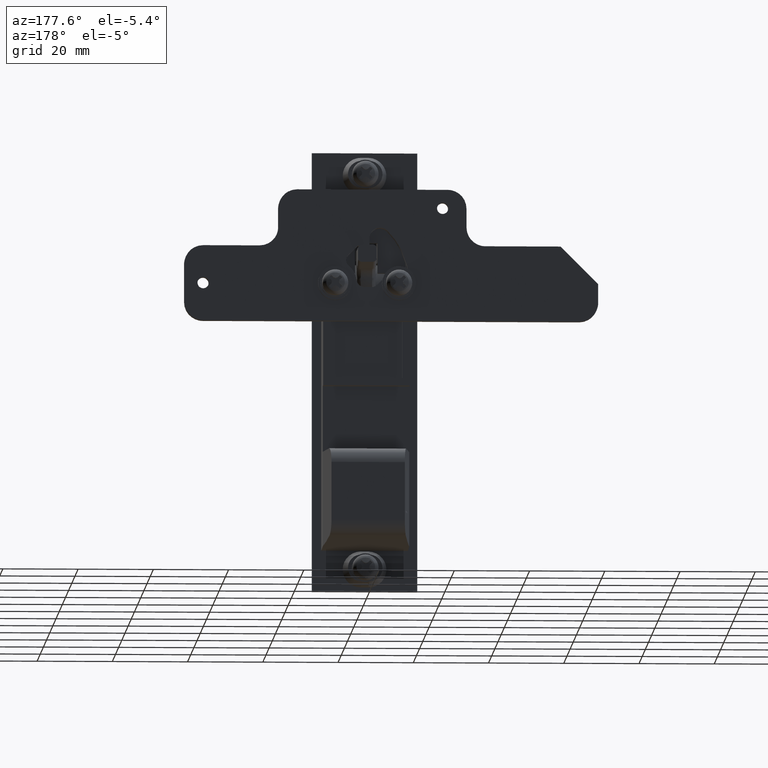
[diagram: clean part render]
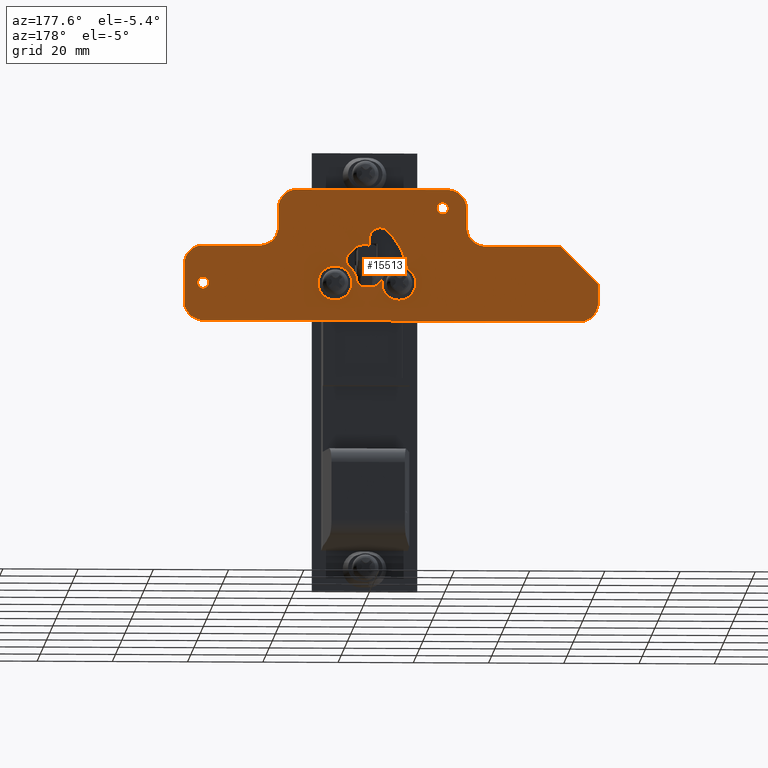
[diagram: same view with one face highlighted and labeled with its STEP entity id]
A machine part, auxiliary view. The second image highlights one B-rep face of the part: STEP entity #15513.
In plain terms, the highlighted face is a freeform B-spline surface patch.
Its self-contained STEP definition (entity closure, byte-faithful):
#13632=CARTESIAN_POINT('',(2.300000000000080,21.665376000523050,19.957311355434431));
#13633=VERTEX_POINT('',#13632);
#13639=CARTESIAN_POINT('',(2.300000000000080,20.170000000000002,21.574999999999999));
#13640=VERTEX_POINT('',#13639);
#13641=CARTESIAN_POINT('',(2.300000000000081,21.665376000523057,19.957311355434424));
#13642=CARTESIAN_POINT('',(2.300000000000080,21.669999999999998,20.016064838510172));
#13643=CARTESIAN_POINT('',(2.300000000000080,21.670000000000002,20.074999999999999));
#13644=CARTESIAN_POINT('',(2.300000000000080,21.670000000000005,21.574999999999996));
#13645=CARTESIAN_POINT('',(2.300000000000080,20.170000000000002,21.574999999999999));
#13653=(BOUNDED_CURVE()B_SPLINE_CURVE(2,(#13641,#13642,#13643,#13644,#13645),.UNSPECIFIED.,.F.,.U.)B_SPLINE_CURVE_WITH_KNOTS((3,2,3),(0.736331300409499,0.750000000000000,1.0),.UNSPECIFIED.)CURVE()GEOMETRIC_REPRESENTATION_ITEM()RATIONAL_B_SPLINE_CURVE((0.969723355705873,0.983986122319777,1.0,0.707106781186548,1.0))REPRESENTATION_ITEM(''));
#13654=EDGE_CURVE('',#13633,#13640,#13653,.T.);
#13656=CARTESIAN_POINT('',(2.300000000000080,18.674623999476950,20.192688644565582));
#13657=VERTEX_POINT('',#13656);
#13658=CARTESIAN_POINT('',(2.300000000000080,20.170000000000002,21.574999999999999));
#13659=CARTESIAN_POINT('',(2.300000000000079,18.783414264324193,21.575000000000003));
#13660=CARTESIAN_POINT('',(2.300000000000080,18.674623999476960,20.192688644565575));
#13668=(BOUNDED_CURVE()B_SPLINE_CURVE(2,(#13658,#13659,#13660),.UNSPECIFIED.,.F.,.U.)B_SPLINE_CURVE_WITH_KNOTS((3,3),(0.0,0.236331300409500),.UNSPECIFIED.)CURVE()GEOMETRIC_REPRESENTATION_ITEM()RATIONAL_B_SPLINE_CURVE((1.0,0.723120658866771,0.969723355705874))REPRESENTATION_ITEM(''));
#13669=EDGE_CURVE('',#13640,#13657,#13668,.T.);
#13715=CARTESIAN_POINT('',(2.300000000000080,20.170000000000002,18.574999999999999));
#13716=VERTEX_POINT('',#13715);
#13717=CARTESIAN_POINT('',(2.300000000000080,18.674623999476960,20.192688644565575));
#13718=CARTESIAN_POINT('',(2.300000000000079,18.670000000000005,20.133935161489831));
#13719=CARTESIAN_POINT('',(2.300000000000080,18.670000000000002,20.074999999999999));
#13720=CARTESIAN_POINT('',(2.300000000000080,18.669999999999998,18.574999999999999));
#13721=CARTESIAN_POINT('',(2.300000000000080,20.170000000000002,18.574999999999999));
#13729=(BOUNDED_CURVE()B_SPLINE_CURVE(2,(#13717,#13718,#13719,#13720,#13721),.UNSPECIFIED.,.F.,.U.)B_SPLINE_CURVE_WITH_KNOTS((3,2,3),(0.236331300409500,0.250000000000000,0.500000000000000),.UNSPECIFIED.)CURVE()GEOMETRIC_REPRESENTATION_ITEM()RATIONAL_B_SPLINE_CURVE((0.969723355705874,0.983986122319777,1.0,0.707106781186548,1.0))REPRESENTATION_ITEM(''));
#13730=EDGE_CURVE('',#13657,#13716,#13729,.T.);
#13732=CARTESIAN_POINT('',(2.300000000000080,20.170000000000002,18.574999999999999));
#13733=CARTESIAN_POINT('',(2.300000000000081,21.556585735675814,18.574999999999999));
#13734=CARTESIAN_POINT('',(2.300000000000081,21.665376000523057,19.957311355434427));
#13742=(BOUNDED_CURVE()B_SPLINE_CURVE(2,(#13732,#13733,#13734),.UNSPECIFIED.,.F.,.U.)B_SPLINE_CURVE_WITH_KNOTS((3,3),(0.500000000000000,0.736331300409500),.UNSPECIFIED.)CURVE()GEOMETRIC_REPRESENTATION_ITEM()RATIONAL_B_SPLINE_CURVE((1.0,0.723120658866770,0.969723355705875))REPRESENTATION_ITEM(''));
#13743=EDGE_CURVE('',#13716,#13633,#13742,.T.);
#13814=CARTESIAN_POINT('',(2.300000000000080,-42.004623999476948,-0.117688644565577));
#13815=VERTEX_POINT('',#13814);
#13821=CARTESIAN_POINT('',(2.300000000000080,-43.500000000000000,1.499999999999997));
#13822=VERTEX_POINT('',#13821);
#13823=CARTESIAN_POINT('',(2.300000000000079,-42.004623999476948,-0.117688644565577));
#13824=CARTESIAN_POINT('',(2.300000000000079,-41.999999999999986,-0.058935161489832));
#13825=CARTESIAN_POINT('',(2.300000000000080,-41.999999999999993,-2.663519E-015));
#13826=CARTESIAN_POINT('',(2.300000000000080,-41.999999999999993,1.499999999999997));
#13827=CARTESIAN_POINT('',(2.300000000000080,-43.500000000000000,1.499999999999997));
#13835=(BOUNDED_CURVE()B_SPLINE_CURVE(2,(#13823,#13824,#13825,#13826,#13827),.UNSPECIFIED.,.F.,.U.)B_SPLINE_CURVE_WITH_KNOTS((3,2,3),(0.736331300409500,0.750000000000000,1.0),.UNSPECIFIED.)CURVE()GEOMETRIC_REPRESENTATION_ITEM()RATIONAL_B_SPLINE_CURVE((0.969723355705874,0.983986122319777,1.0,0.707106781186548,1.0))REPRESENTATION_ITEM(''));
#13836=EDGE_CURVE('',#13815,#13822,#13835,.T.);
#13838=CARTESIAN_POINT('',(2.300000000000080,-44.995376000523052,0.117688644565571));
#13839=VERTEX_POINT('',#13838);
#13840=CARTESIAN_POINT('',(2.300000000000080,-43.500000000000000,1.499999999999997));
#13841=CARTESIAN_POINT('',(2.300000000000080,-44.886585735675801,1.499999999999998));
#13842=CARTESIAN_POINT('',(2.300000000000079,-44.995376000523052,0.117688644565571));
#13850=(BOUNDED_CURVE()B_SPLINE_CURVE(2,(#13840,#13841,#13842),.UNSPECIFIED.,.F.,.U.)B_SPLINE_CURVE_WITH_KNOTS((3,3),(0.0,0.236331300409500),.UNSPECIFIED.)CURVE()GEOMETRIC_REPRESENTATION_ITEM()RATIONAL_B_SPLINE_CURVE((1.0,0.723120658866771,0.969723355705874))REPRESENTATION_ITEM(''));
#13851=EDGE_CURVE('',#13822,#13839,#13850,.T.);
#13897=CARTESIAN_POINT('',(2.300000000000080,-43.500000000000000,-1.500000000000003));
#13898=VERTEX_POINT('',#13897);
#13899=CARTESIAN_POINT('',(2.300000000000080,-44.995376000523052,0.117688644565571));
#13900=CARTESIAN_POINT('',(2.300000000000080,-45.0,0.058935161489827));
#13901=CARTESIAN_POINT('',(2.300000000000080,-45.0,-2.663519E-015));
#13902=CARTESIAN_POINT('',(2.300000000000080,-45.0,-1.500000000000002));
#13903=CARTESIAN_POINT('',(2.300000000000080,-43.500000000000000,-1.500000000000003));
#13911=(BOUNDED_CURVE()B_SPLINE_CURVE(2,(#13899,#13900,#13901,#13902,#13903),.UNSPECIFIED.,.F.,.U.)B_SPLINE_CURVE_WITH_KNOTS((3,2,3),(0.236331300409500,0.250000000000000,0.500000000000000),.UNSPECIFIED.)CURVE()GEOMETRIC_REPRESENTATION_ITEM()RATIONAL_B_SPLINE_CURVE((0.969723355705874,0.983986122319777,1.0,0.707106781186548,1.0))REPRESENTATION_ITEM(''));
#13912=EDGE_CURVE('',#13839,#13898,#13911,.T.);
#13914=CARTESIAN_POINT('',(2.300000000000080,-43.500000000000000,-1.500000000000003));
#13915=CARTESIAN_POINT('',(2.300000000000081,-42.113414264324184,-1.500000000000003));
#13916=CARTESIAN_POINT('',(2.300000000000080,-42.004623999476948,-0.117688644565577));
#13924=(BOUNDED_CURVE()B_SPLINE_CURVE(2,(#13914,#13915,#13916),.UNSPECIFIED.,.F.,.U.)B_SPLINE_CURVE_WITH_KNOTS((3,3),(0.500000000000000,0.736331300409500),.UNSPECIFIED.)CURVE()GEOMETRIC_REPRESENTATION_ITEM()RATIONAL_B_SPLINE_CURVE((1.0,0.723120658866770,0.969723355705875))REPRESENTATION_ITEM(''));
#13925=EDGE_CURVE('',#13898,#13815,#13924,.T.);
#13996=CARTESIAN_POINT('',(2.300000000000080,-5.708631465567574,-0.219685468296305));
#13997=VERTEX_POINT('',#13996);
#14003=CARTESIAN_POINT('',(2.300000000000080,-8.500000000000000,2.799999999999999));
#14004=VERTEX_POINT('',#14003);
#14005=CARTESIAN_POINT('',(2.300000000000080,-5.708631465567574,-0.219685468296305));
#14006=CARTESIAN_POINT('',(2.300000000000079,-5.700000000000000,-0.110012299881012));
#14007=CARTESIAN_POINT('',(2.300000000000080,-5.700000000000000,-8.881784E-016));
#14008=CARTESIAN_POINT('',(2.300000000000081,-5.699999999999999,2.799999999999999));
#14009=CARTESIAN_POINT('',(2.300000000000080,-8.500000000000000,2.799999999999999));
#14017=(BOUNDED_CURVE()B_SPLINE_CURVE(2,(#14005,#14006,#14007,#14008,#14009),.UNSPECIFIED.,.F.,.U.)B_SPLINE_CURVE_WITH_KNOTS((3,2,3),(0.736331300601037,0.750000000000000,1.0),.UNSPECIFIED.)CURVE()GEOMETRIC_REPRESENTATION_ITEM()RATIONAL_B_SPLINE_CURVE((0.969723356105597,0.983986122544177,1.0,0.707106781186547,1.0))REPRESENTATION_ITEM(''));
#14018=EDGE_CURVE('',#13997,#14004,#14017,.T.);
#14020=CARTESIAN_POINT('',(2.300000000000080,-11.291368534432429,0.219685468296303));
#14021=VERTEX_POINT('',#14020);
#14022=CARTESIAN_POINT('',(2.300000000000080,-8.500000000000000,2.799999999999999));
#14023=CARTESIAN_POINT('',(2.300000000000079,-11.088293376162412,2.799999999999999));
#14024=CARTESIAN_POINT('',(2.300000000000080,-11.291368534432431,0.219685468296303));
#14032=(BOUNDED_CURVE()B_SPLINE_CURVE(2,(#14022,#14023,#14024),.UNSPECIFIED.,.F.,.U.)B_SPLINE_CURVE_WITH_KNOTS((3,3),(0.0,0.236331300601037),.UNSPECIFIED.)CURVE()GEOMETRIC_REPRESENTATION_ITEM()RATIONAL_B_SPLINE_CURVE((1.0,0.723120658642371,0.969723356105597))REPRESENTATION_ITEM(''));
#14033=EDGE_CURVE('',#14004,#14021,#14032,.T.);
#14079=CARTESIAN_POINT('',(2.300000000000080,-8.500000000000000,-2.800000000000001));
#14080=VERTEX_POINT('',#14079);
#14081=CARTESIAN_POINT('',(2.300000000000080,-11.291368534432427,0.219685468296303));
#14082=CARTESIAN_POINT('',(2.300000000000079,-11.300000000000006,0.110012299881010));
#14083=CARTESIAN_POINT('',(2.300000000000080,-11.300000000000001,-8.881784E-016));
#14084=CARTESIAN_POINT('',(2.300000000000081,-11.300000000000001,-2.800000000000000));
#14085=CARTESIAN_POINT('',(2.300000000000080,-8.500000000000000,-2.800000000000001));
#14093=(BOUNDED_CURVE()B_SPLINE_CURVE(2,(#14081,#14082,#14083,#14084,#14085),.UNSPECIFIED.,.F.,.U.)B_SPLINE_CURVE_WITH_KNOTS((3,2,3),(0.236331300601037,0.250000000000000,0.500000000000000),.UNSPECIFIED.)CURVE()GEOMETRIC_REPRESENTATION_ITEM()RATIONAL_B_SPLINE_CURVE((0.969723356105597,0.983986122544177,1.0,0.707106781186547,1.0))REPRESENTATION_ITEM(''));
#14094=EDGE_CURVE('',#14021,#14080,#14093,.T.);
#14096=CARTESIAN_POINT('',(2.300000000000080,-8.500000000000000,-2.800000000000001));
#14097=CARTESIAN_POINT('',(2.300000000000080,-5.911706623837599,-2.800000000000001));
#14098=CARTESIAN_POINT('',(2.300000000000080,-5.708631465567574,-0.219685468296305));
#14106=(BOUNDED_CURVE()B_SPLINE_CURVE(2,(#14096,#14097,#14098),.UNSPECIFIED.,.F.,.U.)B_SPLINE_CURVE_WITH_KNOTS((3,3),(0.500000000000000,0.736331300601036),.UNSPECIFIED.)CURVE()GEOMETRIC_REPRESENTATION_ITEM()RATIONAL_B_SPLINE_CURVE((1.0,0.723120658642372,0.969723356105595))REPRESENTATION_ITEM(''));
#14107=EDGE_CURVE('',#14080,#13997,#14106,.T.);
#14157=CARTESIAN_POINT('',(2.300000000000080,-2.647685432154780,0.746834261424279));
#14158=VERTEX_POINT('',#14157);
#14164=CARTESIAN_POINT('',(2.300000000000080,-0.664000000000101,-1.0));
#14165=VERTEX_POINT('',#14164);
#14166=CARTESIAN_POINT('',(2.300000000000080,-2.647685432154777,0.746834261424279));
#14167=CARTESIAN_POINT('',(2.300000000000080,-2.424800374256769,-0.999802577739425));
#14168=CARTESIAN_POINT('',(2.300000000000080,-0.664000000000101,-0.999999999999998));
#14176=(BOUNDED_CURVE()B_SPLINE_CURVE(2,(#14166,#14167,#14168),.UNSPECIFIED.,.F.,.U.)CURVE()GEOMETRIC_REPRESENTATION_ITEM()QUASI_UNIFORM_CURVE()RATIONAL_B_SPLINE_CURVE((1.0,0.750564084766156,1.0))REPRESENTATION_ITEM(''));
#14177=EDGE_CURVE('',#14158,#14165,#14176,.T.);
#14200=CARTESIAN_POINT('',(2.300000000000080,1.268000000000086,-1.0));
#14201=VERTEX_POINT('',#14200);
#14202=CARTESIAN_POINT('',(2.300000000000080,1.268000000000086,-1.0));
#14203=CARTESIAN_POINT('',(2.300000000000080,-0.664000000000101,-1.0));
#14204=QUASI_UNIFORM_CURVE('',1,(#14202,#14203),.UNSPECIFIED.,.F.,.U.);
#14205=EDGE_CURVE('',#14201,#14165,#14204,.T.);
#14245=CARTESIAN_POINT('',(2.300000000000080,2.706053986238550,-0.389964291866400));
#14246=VERTEX_POINT('',#14245);
#14247=CARTESIAN_POINT('',(2.300000000000080,1.268000000000086,-1.0));
#14248=CARTESIAN_POINT('',(2.300000000000080,2.116418368116123,-1.0));
#14249=CARTESIAN_POINT('',(2.300000000000080,2.706053986238550,-0.389964291866401));
#14257=(BOUNDED_CURVE()B_SPLINE_CURVE(2,(#14247,#14248,#14249),.UNSPECIFIED.,.F.,.U.)CURVE()GEOMETRIC_REPRESENTATION_ITEM()QUASI_UNIFORM_CURVE()RATIONAL_B_SPLINE_CURVE((1.0,0.920592783464329,1.0))REPRESENTATION_ITEM(''));
#14258=EDGE_CURVE('',#14201,#14246,#14257,.T.);
#14281=CARTESIAN_POINT('',(2.300000000000080,3.985973006883475,0.888982145936004));
#14282=VERTEX_POINT('',#14281);
#14283=CARTESIAN_POINT('',(2.300000000000080,3.985973006883475,0.888982145936004));
#14284=CARTESIAN_POINT('',(2.300000000000080,2.706053986238550,-0.389964291866400));
#14285=QUASI_UNIFORM_CURVE('',1,(#14283,#14284),.UNSPECIFIED.,.F.,.U.);
#14286=EDGE_CURVE('',#14282,#14246,#14285,.T.);
#14332=CARTESIAN_POINT('',(2.300000000000080,5.704077029608049,0.151045501868276));
#14333=VERTEX_POINT('',#14332);
#14334=CARTESIAN_POINT('',(2.300000000000080,5.704077029608049,0.151045501868275));
#14335=CARTESIAN_POINT('',(2.300000000000079,5.733719332986361,0.840494702719235));
#14336=CARTESIAN_POINT('',(2.300000000000080,5.099644939660021,1.112833701820414));
#14337=CARTESIAN_POINT('',(2.300000000000079,4.465570546333680,1.385172700921593));
#14338=CARTESIAN_POINT('',(2.300000000000080,3.985973006883477,0.888982145936002));
#14346=(BOUNDED_CURVE()B_SPLINE_CURVE(2,(#14334,#14335,#14336,#14337,#14338),.UNSPECIFIED.,.F.,.U.)B_SPLINE_CURVE_WITH_KNOTS((3,2,3),(0.0,0.500000000000000,1.0),.UNSPECIFIED.)CURVE()GEOMETRIC_REPRESENTATION_ITEM()RATIONAL_B_SPLINE_CURVE((1.0,0.823046977254926,1.0,0.823046977254926,1.0))REPRESENTATION_ITEM(''));
#14347=EDGE_CURVE('',#14333,#14282,#14346,.T.);
#14395=CARTESIAN_POINT('',(2.300000000000080,11.300000000000001,2.955535E-016));
#14396=VERTEX_POINT('',#14395);
#14397=CARTESIAN_POINT('',(2.300000000000080,5.704077029608048,0.151045501868276));
#14398=CARTESIAN_POINT('',(2.300000000000080,5.615049788506117,-1.496890420146690));
#14399=CARTESIAN_POINT('',(2.300000000000080,7.013676440737773,-2.372939585657853));
#14400=CARTESIAN_POINT('',(2.300000000000080,8.412303092969429,-3.248988751169016));
#14401=CARTESIAN_POINT('',(2.300000000000080,9.856151546484714,-2.449663851014485));
#14402=CARTESIAN_POINT('',(2.300000000000080,11.299999999999999,-1.650338950859953));
#14403=CARTESIAN_POINT('',(2.300000000000080,11.300000000000001,5.204577E-016));
#14411=(BOUNDED_CURVE()B_SPLINE_CURVE(2,(#14397,#14398,#14399,#14400,#14401,#14402,#14403),.UNSPECIFIED.,.F.,.U.)B_SPLINE_CURVE_WITH_KNOTS((3,2,2,3),(0.0,0.333333333333333,0.666666666666667,1.0),.UNSPECIFIED.)CURVE()GEOMETRIC_REPRESENTATION_ITEM()RATIONAL_B_SPLINE_CURVE((1.0,0.861492843275629,1.0,0.861492843275629,1.0,0.861492843275629,1.0))REPRESENTATION_ITEM(''));
#14412=EDGE_CURVE('',#14333,#14396,#14411,.T.);
#14452=CARTESIAN_POINT('',(2.300000000000080,5.500806627407970,14.000806627408000));
#14453=VERTEX_POINT('',#14452);
#14454=CARTESIAN_POINT('',(2.300000000000080,11.300000000000001,2.955535E-016));
#14455=CARTESIAN_POINT('',(2.300000000000080,11.300130617074327,8.201482637741677));
#14456=CARTESIAN_POINT('',(2.300000000000080,5.500806627407979,14.000806627408020));
#14464=(BOUNDED_CURVE()B_SPLINE_CURVE(2,(#14454,#14455,#14456),.UNSPECIFIED.,.F.,.U.)CURVE()GEOMETRIC_REPRESENTATION_ITEM()QUASI_UNIFORM_CURVE()RATIONAL_B_SPLINE_CURVE((1.0,0.923876485167716,1.0))REPRESENTATION_ITEM(''));
#14465=EDGE_CURVE('',#14396,#14453,#14464,.T.);
#14511=CARTESIAN_POINT('',(2.300000000000080,0.721000000000000,12.021000002072300));
#14512=VERTEX_POINT('',#14511);
#14513=CARTESIAN_POINT('',(2.300000000000080,5.500806627407959,14.000806627407989));
#14514=CARTESIAN_POINT('',(2.300000000000080,4.177919815799071,15.323693439016868));
#14515=CARTESIAN_POINT('',(2.300000000000080,2.449477983771472,14.607768955600831));
#14516=CARTESIAN_POINT('',(2.300000000000080,0.721036151743874,13.891844472184795));
#14517=CARTESIAN_POINT('',(2.300000000000080,0.721000000000000,12.021000002072300));
#14525=(BOUNDED_CURVE()B_SPLINE_CURVE(2,(#14513,#14514,#14515,#14516,#14517),.UNSPECIFIED.,.F.,.U.)B_SPLINE_CURVE_WITH_KNOTS((3,2,3),(0.0,0.500000000000000,1.0),.UNSPECIFIED.)CURVE()GEOMETRIC_REPRESENTATION_ITEM()RATIONAL_B_SPLINE_CURVE((1.0,0.831472296218884,1.0,0.831472296218884,1.0))REPRESENTATION_ITEM(''));
#14526=EDGE_CURVE('',#14453,#14512,#14525,.T.);
#14549=CARTESIAN_POINT('',(2.300000000000080,0.721000000000061,10.500000000000000));
#14550=VERTEX_POINT('',#14549);
#14551=CARTESIAN_POINT('',(2.300000000000080,0.721000000000061,10.500000000000000));
#14552=CARTESIAN_POINT('',(2.300000000000080,0.721000000000000,12.021000002072300));
#14553=QUASI_UNIFORM_CURVE('',1,(#14551,#14552),.UNSPECIFIED.,.F.,.U.);
#14554=EDGE_CURVE('',#14550,#14512,#14553,.T.);
#14594=CARTESIAN_POINT('',(2.300000000000080,0.221000000000061,10.0));
#14595=VERTEX_POINT('',#14594);
#14596=CARTESIAN_POINT('',(2.300000000000080,0.221000000000061,10.0));
#14597=CARTESIAN_POINT('',(2.300000000000080,0.721000000000061,10.000000000000002));
#14598=CARTESIAN_POINT('',(2.300000000000080,0.721000000000061,10.500000000000000));
#14606=(BOUNDED_CURVE()B_SPLINE_CURVE(2,(#14596,#14597,#14598),.UNSPECIFIED.,.F.,.U.)CURVE()GEOMETRIC_REPRESENTATION_ITEM()QUASI_UNIFORM_CURVE()RATIONAL_B_SPLINE_CURVE((1.0,0.707106781186548,1.0))REPRESENTATION_ITEM(''));
#14607=EDGE_CURVE('',#14595,#14550,#14606,.T.);
#14630=CARTESIAN_POINT('',(2.300000000000080,-2.459999999999925,10.0));
#14631=VERTEX_POINT('',#14630);
#14632=CARTESIAN_POINT('',(2.300000000000080,-2.459999999999925,10.0));
#14633=CARTESIAN_POINT('',(2.300000000000080,0.221000000000061,10.0));
#14634=QUASI_UNIFORM_CURVE('',1,(#14632,#14633),.UNSPECIFIED.,.F.,.U.);
#14635=EDGE_CURVE('',#14631,#14595,#14634,.T.);
#14658=CARTESIAN_POINT('',(2.300000000000080,-4.922846565640940,7.538153372063340));
#14659=VERTEX_POINT('',#14658);
#14660=CARTESIAN_POINT('',(2.300000000000080,-4.922846565640940,7.538153372063340));
#14661=CARTESIAN_POINT('',(2.300000000000080,-2.459999999999925,10.0));
#14662=QUASI_UNIFORM_CURVE('',1,(#14660,#14661),.UNSPECIFIED.,.F.,.U.);
#14663=EDGE_CURVE('',#14659,#14631,#14662,.T.);
#14705=CARTESIAN_POINT('',(2.300000000000080,-4.772484693166960,4.573360868915271));
#14706=VERTEX_POINT('',#14705);
#14707=CARTESIAN_POINT('',(2.300000000000080,-4.922846565640936,7.538153372063335));
#14708=CARTESIAN_POINT('',(2.300000000000079,-5.551365283599269,6.909889838318543));
#14709=CARTESIAN_POINT('',(2.300000000000080,-5.506353039475068,6.022351250686217));
#14710=CARTESIAN_POINT('',(2.300000000000079,-5.461340795350868,5.134812663053892));
#14711=CARTESIAN_POINT('',(2.300000000000080,-4.772484693166964,4.573360868915266));
#14719=(BOUNDED_CURVE()B_SPLINE_CURVE(2,(#14707,#14708,#14709,#14710,#14711),.UNSPECIFIED.,.F.,.U.)B_SPLINE_CURVE_WITH_KNOTS((3,2,3),(0.0,0.500000000000000,1.0),.UNSPECIFIED.)CURVE()GEOMETRIC_REPRESENTATION_ITEM()RATIONAL_B_SPLINE_CURVE((1.0,0.913847092099599,1.0,0.913847092099599,1.0))REPRESENTATION_ITEM(''));
#14720=EDGE_CURVE('',#14659,#14706,#14719,.T.);
#14758=CARTESIAN_POINT('',(2.300000000000080,-2.647685432154780,0.746834261424279));
#14759=CARTESIAN_POINT('',(2.300000000000079,-2.945976884946469,3.084392665630474));
#14760=CARTESIAN_POINT('',(2.300000000000080,-4.772484693166962,4.573360868915267));
#14768=(BOUNDED_CURVE()B_SPLINE_CURVE(2,(#14758,#14759,#14760),.UNSPECIFIED.,.F.,.U.)CURVE()GEOMETRIC_REPRESENTATION_ITEM()QUASI_UNIFORM_CURVE()RATIONAL_B_SPLINE_CURVE((1.0,0.928676928307259,1.0))REPRESENTATION_ITEM(''));
#14769=EDGE_CURVE('',#14158,#14706,#14768,.T.);
#14806=CARTESIAN_POINT('',(2.300000000000080,-23.500000000000000,20.0));
#14807=VERTEX_POINT('',#14806);
#14813=CARTESIAN_POINT('',(2.300000000000080,-18.500000000000000,25.0));
#14814=VERTEX_POINT('',#14813);
#14815=CARTESIAN_POINT('',(2.300000000000080,-18.500000000000000,25.0));
#14816=CARTESIAN_POINT('',(2.300000000000080,-23.500000000000004,25.0));
#14817=CARTESIAN_POINT('',(2.300000000000080,-23.500000000000000,20.0));
#14825=(BOUNDED_CURVE()B_SPLINE_CURVE(2,(#14815,#14816,#14817),.UNSPECIFIED.,.F.,.U.)CURVE()GEOMETRIC_REPRESENTATION_ITEM()QUASI_UNIFORM_CURVE()RATIONAL_B_SPLINE_CURVE((1.0,0.707106781186548,1.0))REPRESENTATION_ITEM(''));
#14826=EDGE_CURVE('',#14814,#14807,#14825,.T.);
#14849=CARTESIAN_POINT('',(2.300000000000080,21.500000000000000,25.0));
#14850=VERTEX_POINT('',#14849);
#14851=CARTESIAN_POINT('',(2.300000000000080,21.500000000000000,25.0));
#14852=CARTESIAN_POINT('',(2.300000000000080,-18.500000000000000,25.0));
#14853=QUASI_UNIFORM_CURVE('',1,(#14851,#14852),.UNSPECIFIED.,.F.,.U.);
#14854=EDGE_CURVE('',#14850,#14814,#14853,.T.);
#14894=CARTESIAN_POINT('',(2.300000000000080,26.500000000000000,20.0));
#14895=VERTEX_POINT('',#14894);
#14896=CARTESIAN_POINT('',(2.300000000000080,26.500000000000000,20.0));
#14897=CARTESIAN_POINT('',(2.300000000000080,26.500000000000000,25.0));
#14898=CARTESIAN_POINT('',(2.300000000000080,21.500000000000000,25.0));
#14906=(BOUNDED_CURVE()B_SPLINE_CURVE(2,(#14896,#14897,#14898),.UNSPECIFIED.,.F.,.U.)CURVE()GEOMETRIC_REPRESENTATION_ITEM()QUASI_UNIFORM_CURVE()RATIONAL_B_SPLINE_CURVE((1.0,0.707106781186548,1.0))REPRESENTATION_ITEM(''));
#14907=EDGE_CURVE('',#14895,#14850,#14906,.T.);
#14930=CARTESIAN_POINT('',(2.300000000000080,26.500000000000000,15.0));
#14931=VERTEX_POINT('',#14930);
#14932=CARTESIAN_POINT('',(2.300000000000080,26.500000000000000,15.0));
#14933=CARTESIAN_POINT('',(2.300000000000080,26.500000000000000,20.0));
#14934=QUASI_UNIFORM_CURVE('',1,(#14932,#14933),.UNSPECIFIED.,.F.,.U.);
#14935=EDGE_CURVE('',#14931,#14895,#14934,.T.);
#14975=CARTESIAN_POINT('',(2.300000000000080,31.500000000000000,10.0));
#14976=VERTEX_POINT('',#14975);
#14977=CARTESIAN_POINT('',(2.300000000000080,26.500000000000000,15.0));
#14978=CARTESIAN_POINT('',(2.300000000000080,26.500000000000000,9.999999999999998));
#14979=CARTESIAN_POINT('',(2.300000000000080,31.500000000000000,9.999999999999998));
#14987=(BOUNDED_CURVE()B_SPLINE_CURVE(2,(#14977,#14978,#14979),.UNSPECIFIED.,.F.,.U.)CURVE()GEOMETRIC_REPRESENTATION_ITEM()QUASI_UNIFORM_CURVE()RATIONAL_B_SPLINE_CURVE((1.0,0.707106781186548,1.0))REPRESENTATION_ITEM(''));
#14988=EDGE_CURVE('',#14931,#14976,#14987,.T.);
#15011=CARTESIAN_POINT('',(2.300000000000080,51.500000000000000,10.0));
#15012=VERTEX_POINT('',#15011);
#15013=CARTESIAN_POINT('',(2.300000000000080,51.500000000000000,10.0));
#15014=CARTESIAN_POINT('',(2.300000000000080,31.500000000000000,10.0));
#15015=QUASI_UNIFORM_CURVE('',1,(#15013,#15014),.UNSPECIFIED.,.F.,.U.);
#15016=EDGE_CURVE('',#15012,#14976,#15015,.T.);
#15039=CARTESIAN_POINT('',(2.300000000000080,61.500000000000000,3.765665E-015));
#15040=VERTEX_POINT('',#15039);
#15041=CARTESIAN_POINT('',(2.300000000000080,61.500000000000000,3.765665E-015));
#15042=CARTESIAN_POINT('',(2.300000000000080,51.500000000000000,10.0));
#15043=QUASI_UNIFORM_CURVE('',1,(#15041,#15042),.UNSPECIFIED.,.F.,.U.);
#15044=EDGE_CURVE('',#15040,#15012,#15043,.T.);
#15067=CARTESIAN_POINT('',(2.300000000000080,61.500000000000000,-4.999999999999901));
#15068=VERTEX_POINT('',#15067);
#15069=CARTESIAN_POINT('',(2.300000000000080,61.500000000000000,-4.999999999999901));
#15070=CARTESIAN_POINT('',(2.300000000000080,61.500000000000000,3.765665E-015));
#15071=QUASI_UNIFORM_CURVE('',1,(#15069,#15070),.UNSPECIFIED.,.F.,.U.);
#15072=EDGE_CURVE('',#15068,#15040,#15071,.T.);
#15112=CARTESIAN_POINT('',(2.300000000000080,56.500000000000000,-10.0));
#15113=VERTEX_POINT('',#15112);
#15114=CARTESIAN_POINT('',(2.300000000000080,56.500000000000000,-9.999999999999901));
#15115=CARTESIAN_POINT('',(2.300000000000080,61.500000000000007,-9.999999999999901));
#15116=CARTESIAN_POINT('',(2.300000000000080,61.500000000000000,-4.999999999999901));
#15124=(BOUNDED_CURVE()B_SPLINE_CURVE(2,(#15114,#15115,#15116),.UNSPECIFIED.,.F.,.U.)CURVE()GEOMETRIC_REPRESENTATION_ITEM()QUASI_UNIFORM_CURVE()RATIONAL_B_SPLINE_CURVE((1.0,0.707106781186548,1.0))REPRESENTATION_ITEM(''));
#15125=EDGE_CURVE('',#15113,#15068,#15124,.T.);
#15148=CARTESIAN_POINT('',(2.300000000000080,-43.500000000000000,-10.0));
#15149=VERTEX_POINT('',#15148);
#15150=CARTESIAN_POINT('',(2.300000000000080,-43.500000000000000,-10.0));
#15151=CARTESIAN_POINT('',(2.300000000000080,56.500000000000000,-10.0));
#15152=QUASI_UNIFORM_CURVE('',1,(#15150,#15151),.UNSPECIFIED.,.F.,.U.);
#15153=EDGE_CURVE('',#15149,#15113,#15152,.T.);
#15193=CARTESIAN_POINT('',(2.300000000000080,-48.500000000000000,-4.999999999999901));
#15194=VERTEX_POINT('',#15193);
#15195=CARTESIAN_POINT('',(2.300000000000080,-48.499999999999993,-4.999999999999901));
#15196=CARTESIAN_POINT('',(2.300000000000080,-48.500000000000007,-9.999999999999901));
#15197=CARTESIAN_POINT('',(2.300000000000080,-43.500000000000000,-9.999999999999901));
#15205=(BOUNDED_CURVE()B_SPLINE_CURVE(2,(#15195,#15196,#15197),.UNSPECIFIED.,.F.,.U.)CURVE()GEOMETRIC_REPRESENTATION_ITEM()QUASI_UNIFORM_CURVE()RATIONAL_B_SPLINE_CURVE((1.0,0.707106781186548,1.0))REPRESENTATION_ITEM(''));
#15206=EDGE_CURVE('',#15194,#15149,#15205,.T.);
#15229=CARTESIAN_POINT('',(2.300000000000080,-48.500000000000000,5.000000000000100));
#15230=VERTEX_POINT('',#15229);
#15231=CARTESIAN_POINT('',(2.300000000000080,-48.500000000000000,5.000000000000100));
#15232=CARTESIAN_POINT('',(2.300000000000080,-48.500000000000000,-4.999999999999901));
#15233=QUASI_UNIFORM_CURVE('',1,(#15231,#15232),.UNSPECIFIED.,.F.,.U.);
#15234=EDGE_CURVE('',#15230,#15194,#15233,.T.);
#15274=CARTESIAN_POINT('',(2.300000000000080,-43.500000000000000,10.0));
#15275=VERTEX_POINT('',#15274);
#15276=CARTESIAN_POINT('',(2.300000000000080,-43.500000000000000,10.000000000000099));
#15277=CARTESIAN_POINT('',(2.300000000000080,-48.500000000000007,10.000000000000099));
#15278=CARTESIAN_POINT('',(2.300000000000080,-48.499999999999993,5.000000000000100));
#15286=(BOUNDED_CURVE()B_SPLINE_CURVE(2,(#15276,#15277,#15278),.UNSPECIFIED.,.F.,.U.)CURVE()GEOMETRIC_REPRESENTATION_ITEM()QUASI_UNIFORM_CURVE()RATIONAL_B_SPLINE_CURVE((1.0,0.707106781186548,1.0))REPRESENTATION_ITEM(''));
#15287=EDGE_CURVE('',#15275,#15230,#15286,.T.);
#15310=CARTESIAN_POINT('',(2.300000000000080,-28.500000000000000,10.0));
#15311=VERTEX_POINT('',#15310);
#15312=CARTESIAN_POINT('',(2.300000000000080,-28.500000000000000,10.0));
#15313=CARTESIAN_POINT('',(2.300000000000080,-43.500000000000000,10.0));
#15314=QUASI_UNIFORM_CURVE('',1,(#15312,#15313),.UNSPECIFIED.,.F.,.U.);
#15315=EDGE_CURVE('',#15311,#15275,#15314,.T.);
#15355=CARTESIAN_POINT('',(2.300000000000080,-23.500000000000000,15.0));
#15356=VERTEX_POINT('',#15355);
#15357=CARTESIAN_POINT('',(2.300000000000080,-28.500000000000000,9.999999999999998));
#15358=CARTESIAN_POINT('',(2.300000000000080,-23.500000000000004,9.999999999999998));
#15359=CARTESIAN_POINT('',(2.300000000000080,-23.500000000000000,15.0));
#15367=(BOUNDED_CURVE()B_SPLINE_CURVE(2,(#15357,#15358,#15359),.UNSPECIFIED.,.F.,.U.)CURVE()GEOMETRIC_REPRESENTATION_ITEM()QUASI_UNIFORM_CURVE()RATIONAL_B_SPLINE_CURVE((1.0,0.707106781186548,1.0))REPRESENTATION_ITEM(''));
#15368=EDGE_CURVE('',#15311,#15356,#15367,.T.);
#15389=CARTESIAN_POINT('',(2.300000000000080,-23.500000000000000,20.0));
#15390=CARTESIAN_POINT('',(2.300000000000080,-23.500000000000000,15.0));
#15391=QUASI_UNIFORM_CURVE('',1,(#15389,#15390),.UNSPECIFIED.,.F.,.U.);
#15392=EDGE_CURVE('',#14807,#15356,#15391,.T.);
#15456=CARTESIAN_POINT('',(2.300000000000095,-53.994499786798670,26.748249932163208));
#15457=CARTESIAN_POINT('',(2.300000000000095,66.994502737228572,26.748249932163208));
#15458=CARTESIAN_POINT('',(2.300000000000095,-53.994499786798670,-11.748250870936360));
#15459=CARTESIAN_POINT('',(2.300000000000095,66.994502737228572,-11.748250870936360));
#15460=B_SPLINE_SURFACE_WITH_KNOTS('',1,1,((#15456,#15458),(#15457,#15459)),.UNSPECIFIED.,.F.,.F.,.U.,(2,2),(2,2),(0.0,120.989002524027200),(0.0,38.496500803099579),.UNSPECIFIED.);
#15461=ORIENTED_EDGE('',*,*,#15392,.T.);
#15462=ORIENTED_EDGE('',*,*,#15368,.F.);
#15463=ORIENTED_EDGE('',*,*,#15315,.T.);
#15464=ORIENTED_EDGE('',*,*,#15287,.T.);
#15465=ORIENTED_EDGE('',*,*,#15234,.T.);
#15466=ORIENTED_EDGE('',*,*,#15206,.T.);
#15467=ORIENTED_EDGE('',*,*,#15153,.T.);
#15468=ORIENTED_EDGE('',*,*,#15125,.T.);
#15469=ORIENTED_EDGE('',*,*,#15072,.T.);
#15470=ORIENTED_EDGE('',*,*,#15044,.T.);
#15471=ORIENTED_EDGE('',*,*,#15016,.T.);
#15472=ORIENTED_EDGE('',*,*,#14988,.F.);
#15473=ORIENTED_EDGE('',*,*,#14935,.T.);
#15474=ORIENTED_EDGE('',*,*,#14907,.T.);
#15475=ORIENTED_EDGE('',*,*,#14854,.T.);
#15476=ORIENTED_EDGE('',*,*,#14826,.T.);
#15477=EDGE_LOOP('',(#15461,#15462,#15463,#15464,#15465,#15466,#15467,#15468,#15469,#15470,#15471,#15472,#15473,#15474,#15475,#15476));
#15478=FACE_OUTER_BOUND('',#15477,.T.);
#15479=ORIENTED_EDGE('',*,*,#14769,.T.);
#15480=ORIENTED_EDGE('',*,*,#14720,.F.);
#15481=ORIENTED_EDGE('',*,*,#14663,.T.);
#15482=ORIENTED_EDGE('',*,*,#14635,.T.);
#15483=ORIENTED_EDGE('',*,*,#14607,.T.);
#15484=ORIENTED_EDGE('',*,*,#14554,.T.);
#15485=ORIENTED_EDGE('',*,*,#14526,.F.);
#15486=ORIENTED_EDGE('',*,*,#14465,.F.);
#15487=ORIENTED_EDGE('',*,*,#14412,.F.);
#15488=ORIENTED_EDGE('',*,*,#14347,.T.);
#15489=ORIENTED_EDGE('',*,*,#14286,.T.);
#15490=ORIENTED_EDGE('',*,*,#14258,.F.);
#15491=ORIENTED_EDGE('',*,*,#14205,.T.);
#15492=ORIENTED_EDGE('',*,*,#14177,.F.);
#15493=EDGE_LOOP('',(#15479,#15480,#15481,#15482,#15483,#15484,#15485,#15486,#15487,#15488,#15489,#15490,#15491,#15492));
#15494=FACE_BOUND('',#15493,.T.);
#15495=ORIENTED_EDGE('',*,*,#14107,.F.);
#15496=ORIENTED_EDGE('',*,*,#14094,.F.);
#15497=ORIENTED_EDGE('',*,*,#14033,.F.);
#15498=ORIENTED_EDGE('',*,*,#14018,.F.);
#15499=EDGE_LOOP('',(#15495,#15496,#15497,#15498));
#15500=FACE_BOUND('',#15499,.T.);
#15501=ORIENTED_EDGE('',*,*,#13925,.F.);
#15502=ORIENTED_EDGE('',*,*,#13912,.F.);
#15503=ORIENTED_EDGE('',*,*,#13851,.F.);
#15504=ORIENTED_EDGE('',*,*,#13836,.F.);
#15505=EDGE_LOOP('',(#15501,#15502,#15503,#15504));
#15506=FACE_BOUND('',#15505,.T.);
#15507=ORIENTED_EDGE('',*,*,#13743,.F.);
#15508=ORIENTED_EDGE('',*,*,#13730,.F.);
#15509=ORIENTED_EDGE('',*,*,#13669,.F.);
#15510=ORIENTED_EDGE('',*,*,#13654,.F.);
#15511=EDGE_LOOP('',(#15507,#15508,#15509,#15510));
#15512=FACE_BOUND('',#15511,.T.);
#15513=ADVANCED_FACE('',(#15478,#15494,#15500,#15506,#15512),#15460,.F.);